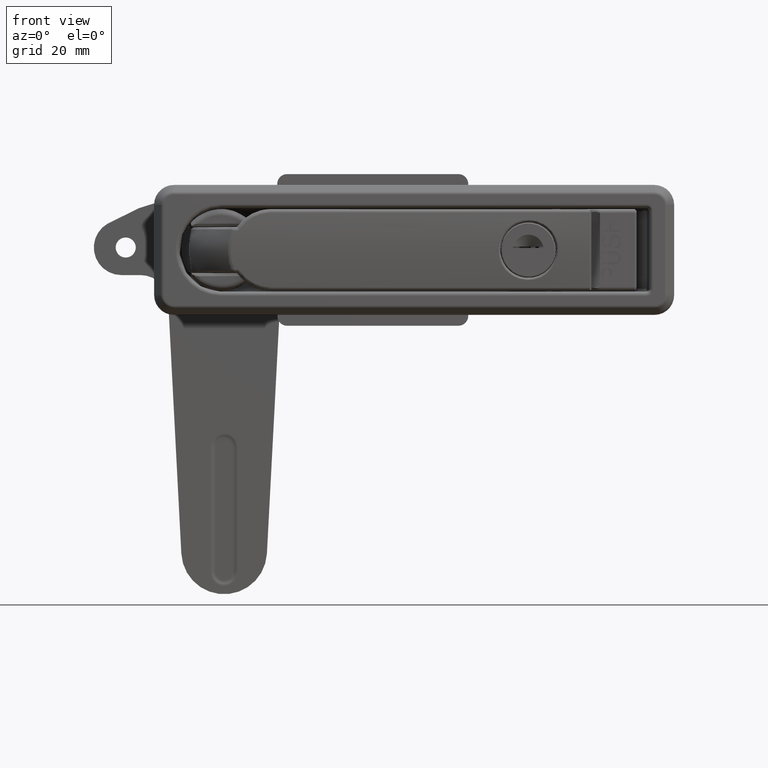
[diagram: clean part render]
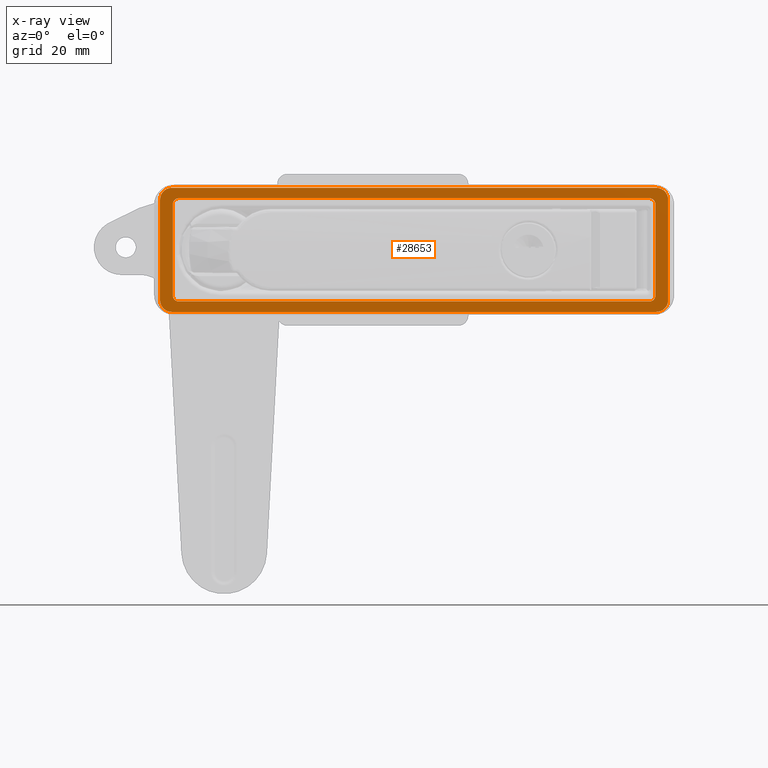
[diagram: x-ray — body ghosted, one internal face saturated and labeled with its STEP entity id]
A machine part, front view, then the same camera in x-ray: the body is ghosted and one INTERNAL B-rep face — a face not visible from any outside direction — is saturated and labeled: STEP entity #28653.
In plain terms, the highlighted planar face has unit normal (0, 1, 0).
Its self-contained STEP definition (entity closure, byte-faithful):
#558=FACE_BOUND('',#6091,.T.);
#1930=CIRCLE('',#31163,3.);
#1931=CIRCLE('',#31164,3.);
#1932=CIRCLE('',#31165,3.);
#1933=CIRCLE('',#31166,3.);
#1934=CIRCLE('',#31167,1.5);
#1935=CIRCLE('',#31168,1.5);
#1936=CIRCLE('',#31169,1.5);
#1937=CIRCLE('',#31170,1.5);
#4255=FACE_OUTER_BOUND('',#6090,.T.);
#6090=EDGE_LOOP('',(#24434,#24435,#24436,#24437,#24438,#24439,#24440,#24441));
#6091=EDGE_LOOP('',(#24442,#24443,#24444,#24445,#24446,#24447,#24448,#24449));
#8898=LINE('',#91982,#10943);
#8899=LINE('',#91986,#10944);
#8900=LINE('',#91990,#10945);
#8901=LINE('',#91993,#10946);
#8902=LINE('',#91996,#10947);
#8903=LINE('',#92000,#10948);
#8904=LINE('',#92004,#10949);
#8905=LINE('',#92008,#10950);
#10943=VECTOR('',#37703,25.5);
#10944=VECTOR('',#37706,123.);
#10945=VECTOR('',#37709,25.5);
#10946=VECTOR('',#37712,123.);
#10947=VECTOR('',#37713,23.2);
#10948=VECTOR('',#37716,119.5);
#10949=VECTOR('',#37719,23.2);
#10950=VECTOR('',#37722,119.5);
#13321=VERTEX_POINT('',#91978);
#13322=VERTEX_POINT('',#91979);
#13323=VERTEX_POINT('',#91981);
#13324=VERTEX_POINT('',#91983);
#13325=VERTEX_POINT('',#91985);
#13326=VERTEX_POINT('',#91987);
#13327=VERTEX_POINT('',#91989);
#13328=VERTEX_POINT('',#91991);
#13329=VERTEX_POINT('',#91994);
#13330=VERTEX_POINT('',#91995);
#13331=VERTEX_POINT('',#91997);
#13332=VERTEX_POINT('',#91999);
#13333=VERTEX_POINT('',#92001);
#13334=VERTEX_POINT('',#92003);
#13335=VERTEX_POINT('',#92005);
#13336=VERTEX_POINT('',#92007);
#17142=EDGE_CURVE('',#13321,#13322,#1930,.T.);
#17143=EDGE_CURVE('',#13323,#13322,#8898,.T.);
#17144=EDGE_CURVE('',#13323,#13324,#1931,.T.);
#17145=EDGE_CURVE('',#13325,#13324,#8899,.T.);
#17146=EDGE_CURVE('',#13325,#13326,#1932,.T.);
#17147=EDGE_CURVE('',#13327,#13326,#8900,.T.);
#17148=EDGE_CURVE('',#13327,#13328,#1933,.T.);
#17149=EDGE_CURVE('',#13321,#13328,#8901,.T.);
#17150=EDGE_CURVE('',#13329,#13330,#8902,.T.);
#17151=EDGE_CURVE('',#13329,#13331,#1934,.T.);
#17152=EDGE_CURVE('',#13332,#13331,#8903,.T.);
#17153=EDGE_CURVE('',#13332,#13333,#1935,.T.);
#17154=EDGE_CURVE('',#13334,#13333,#8904,.T.);
#17155=EDGE_CURVE('',#13334,#13335,#1936,.T.);
#17156=EDGE_CURVE('',#13336,#13335,#8905,.T.);
#17157=EDGE_CURVE('',#13336,#13330,#1937,.T.);
#24434=ORIENTED_EDGE('',*,*,#17142,.T.);
#24435=ORIENTED_EDGE('',*,*,#17143,.F.);
#24436=ORIENTED_EDGE('',*,*,#17144,.T.);
#24437=ORIENTED_EDGE('',*,*,#17145,.F.);
#24438=ORIENTED_EDGE('',*,*,#17146,.T.);
#24439=ORIENTED_EDGE('',*,*,#17147,.F.);
#24440=ORIENTED_EDGE('',*,*,#17148,.T.);
#24441=ORIENTED_EDGE('',*,*,#17149,.F.);
#24442=ORIENTED_EDGE('',*,*,#17150,.F.);
#24443=ORIENTED_EDGE('',*,*,#17151,.T.);
#24444=ORIENTED_EDGE('',*,*,#17152,.F.);
#24445=ORIENTED_EDGE('',*,*,#17153,.T.);
#24446=ORIENTED_EDGE('',*,*,#17154,.F.);
#24447=ORIENTED_EDGE('',*,*,#17155,.T.);
#24448=ORIENTED_EDGE('',*,*,#17156,.F.);
#24449=ORIENTED_EDGE('',*,*,#17157,.T.);
#27172=PLANE('',#31162);
#28653=ADVANCED_FACE('',(#4255,#558),#27172,.F.);
#31162=AXIS2_PLACEMENT_3D('',#91977,#37699,#37700);
#31163=AXIS2_PLACEMENT_3D('',#91980,#37701,#37702);
#31164=AXIS2_PLACEMENT_3D('',#91984,#37704,#37705);
#31165=AXIS2_PLACEMENT_3D('',#91988,#37707,#37708);
#31166=AXIS2_PLACEMENT_3D('',#91992,#37710,#37711);
#31167=AXIS2_PLACEMENT_3D('',#91998,#37714,#37715);
#31168=AXIS2_PLACEMENT_3D('',#92002,#37717,#37718);
#31169=AXIS2_PLACEMENT_3D('',#92006,#37720,#37721);
#31170=AXIS2_PLACEMENT_3D('',#92009,#37723,#37724);
#37699=DIRECTION('center_axis',(0.,1.,0.));
#37700=DIRECTION('ref_axis',(1.,0.,0.));
#37701=DIRECTION('center_axis',(0.,-1.,0.));
#37702=DIRECTION('ref_axis',(-1.,0.,0.));
#37703=DIRECTION('',(-1.,0.,0.));
#37704=DIRECTION('center_axis',(0.,-1.,0.));
#37705=DIRECTION('ref_axis',(0.,0.,-1.));
#37706=DIRECTION('',(0.,0.,-1.));
#37707=DIRECTION('center_axis',(0.,-1.,0.));
#37708=DIRECTION('ref_axis',(1.,0.,0.));
#37709=DIRECTION('',(1.,0.,0.));
#37710=DIRECTION('center_axis',(0.,-1.,0.));
#37711=DIRECTION('ref_axis',(0.,0.,1.));
#37712=DIRECTION('',(0.,0.,1.));
#37713=DIRECTION('',(-1.,0.,0.));
#37714=DIRECTION('center_axis',(0.,1.,0.));
#37715=DIRECTION('ref_axis',(0.,0.,1.));
#37716=DIRECTION('',(0.,0.,1.));
#37717=DIRECTION('center_axis',(0.,1.,0.));
#37718=DIRECTION('ref_axis',(1.,0.,0.));
#37719=DIRECTION('',(1.,0.,0.));
#37720=DIRECTION('center_axis',(0.,1.,0.));
#37721=DIRECTION('ref_axis',(0.,0.,-1.));
#37722=DIRECTION('',(0.,0.,-1.));
#37723=DIRECTION('center_axis',(0.,1.,0.));
#37724=DIRECTION('ref_axis',(-1.,0.,0.));
#91977=CARTESIAN_POINT('Origin',(0.,-0.5,0.));
#91978=CARTESIAN_POINT('',(-15.75,-0.5,-61.5));
#91979=CARTESIAN_POINT('',(-12.75,-0.5,-64.5));
#91980=CARTESIAN_POINT('Origin',(-12.75,-0.5,-61.5));
#91981=CARTESIAN_POINT('',(12.75,-0.5,-64.5));
#91982=CARTESIAN_POINT('',(12.75,-0.5,-64.5));
#91983=CARTESIAN_POINT('',(15.75,-0.5,-61.5));
#91984=CARTESIAN_POINT('Origin',(12.75,-0.5,-61.5));
#91985=CARTESIAN_POINT('',(15.75,-0.5,61.5));
#91986=CARTESIAN_POINT('',(15.75,-0.5,61.5));
#91987=CARTESIAN_POINT('',(12.75,-0.5,64.5));
#91988=CARTESIAN_POINT('Origin',(12.75,-0.5,61.5));
#91989=CARTESIAN_POINT('',(-12.75,-0.5,64.5));
#91990=CARTESIAN_POINT('',(-12.75,-0.5,64.5));
#91991=CARTESIAN_POINT('',(-15.75,-0.5,61.5));
#91992=CARTESIAN_POINT('Origin',(-12.75,-0.5,61.5));
#91993=CARTESIAN_POINT('',(-15.75,-0.5,-61.5));
#91994=CARTESIAN_POINT('',(11.6,-0.5,61.25));
#91995=CARTESIAN_POINT('',(-11.6,-0.5,61.25));
#91996=CARTESIAN_POINT('',(11.6,-0.5,61.25));
#91997=CARTESIAN_POINT('',(13.1,-0.5,59.75));
#91998=CARTESIAN_POINT('Origin',(11.6,-0.5,59.75));
#91999=CARTESIAN_POINT('',(13.1,-0.5,-59.75));
#92000=CARTESIAN_POINT('',(13.1,-0.5,-59.75));
#92001=CARTESIAN_POINT('',(11.6,-0.5,-61.25));
#92002=CARTESIAN_POINT('Origin',(11.6,-0.5,-59.75));
#92003=CARTESIAN_POINT('',(-11.6,-0.5,-61.25));
#92004=CARTESIAN_POINT('',(-11.6,-0.5,-61.25));
#92005=CARTESIAN_POINT('',(-13.1,-0.5,-59.75));
#92006=CARTESIAN_POINT('Origin',(-11.6,-0.5,-59.75));
#92007=CARTESIAN_POINT('',(-13.1,-0.5,59.75));
#92008=CARTESIAN_POINT('',(-13.1,-0.5,59.75));
#92009=CARTESIAN_POINT('Origin',(-11.6,-0.5,59.75));